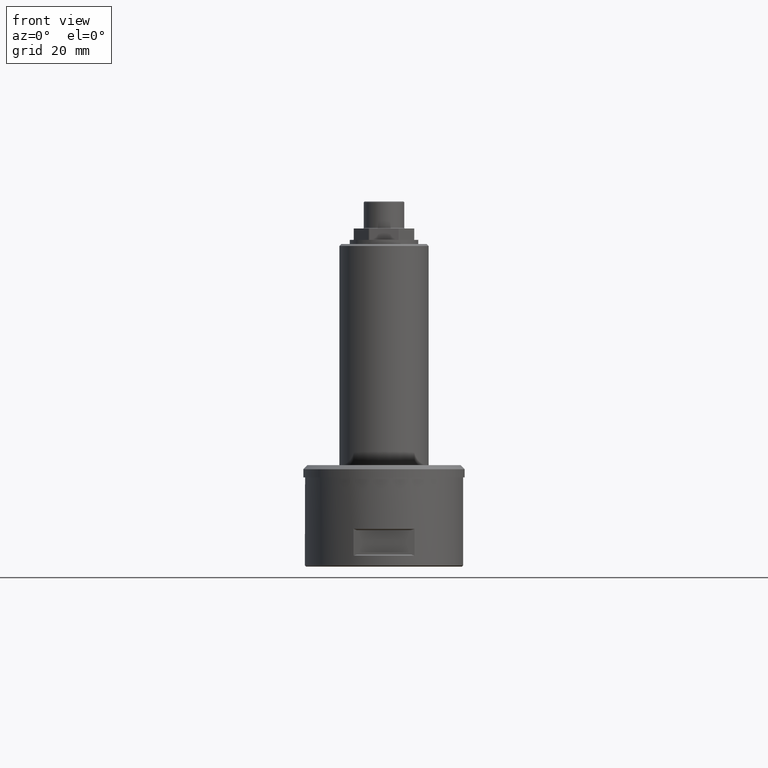
[diagram: clean part render]
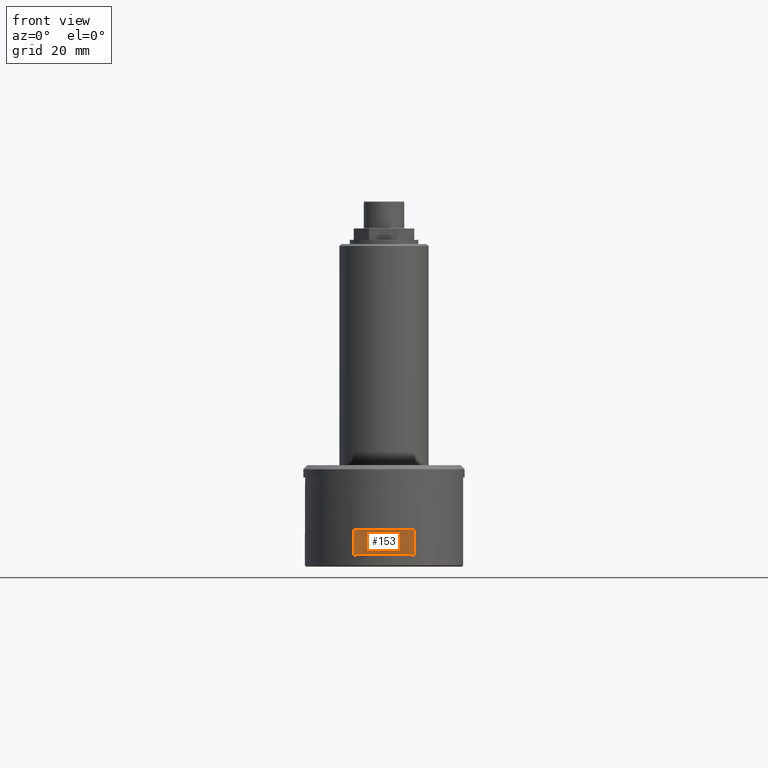
[diagram: same view with one face highlighted and labeled with its STEP entity id]
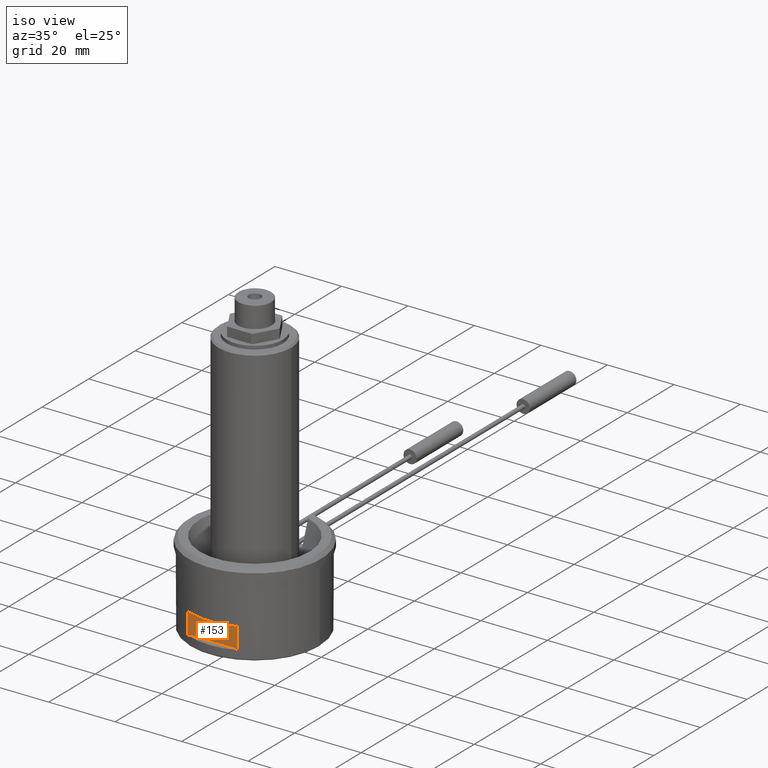
[diagram: same view with one face highlighted and labeled with its STEP entity id]
A machine part, front view. The second image highlights one B-rep face of the part: STEP entity #153.
A second angle (iso view) of the same face is appended — the face is thin or edge-on in the first view.
In plain terms, the highlighted planar face has unit normal (0, 1, 0).
Its self-contained STEP definition (entity closure, byte-faithful):
#62=B_SPLINE_CURVE_WITH_KNOTS('',3,(#1698,#1699,#1700,#1701),
 .UNSPECIFIED.,.F.,.F.,(4,4),(0.,1.),.UNSPECIFIED.);
#63=B_SPLINE_CURVE_WITH_KNOTS('',3,(#1705,#1706,#1707,#1708),
 .UNSPECIFIED.,.F.,.F.,(4,4),(0.,1.),.UNSPECIFIED.);
#64=B_SPLINE_CURVE_WITH_KNOTS('',3,(#1712,#1713,#1714,#1715),
 .UNSPECIFIED.,.F.,.F.,(4,4),(0.,1.),.UNSPECIFIED.);
#65=B_SPLINE_CURVE_WITH_KNOTS('',3,(#1716,#1717,#1718,#1719),
 .UNSPECIFIED.,.F.,.F.,(4,4),(0.,1.),.UNSPECIFIED.);
#102=FACE_OUTER_BOUND('',#408,.T.);
#153=ADVANCED_FACE('',(#102),#199,.F.);
#199=PLANE('',#1019);
#244=LINE('',#1690,#288);
#245=LINE('',#1695,#289);
#246=LINE('',#1703,#290);
#247=LINE('',#1710,#291);
#288=VECTOR('',#1228,1.);
#289=VECTOR('',#1233,1.);
#290=VECTOR('',#1234,1.);
#291=VECTOR('',#1235,1.);
#408=EDGE_LOOP('',(#560,#561,#562,#563,#564,#565,#566,#567));
#560=ORIENTED_EDGE('',*,*,#858,.F.);
#561=ORIENTED_EDGE('',*,*,#859,.T.);
#562=ORIENTED_EDGE('',*,*,#860,.T.);
#563=ORIENTED_EDGE('',*,*,#861,.T.);
#564=ORIENTED_EDGE('',*,*,#862,.F.);
#565=ORIENTED_EDGE('',*,*,#863,.T.);
#566=ORIENTED_EDGE('',*,*,#856,.T.);
#567=ORIENTED_EDGE('',*,*,#864,.T.);
#753=VERTEX_POINT('',#1691);
#754=VERTEX_POINT('',#1692);
#755=VERTEX_POINT('',#1696);
#756=VERTEX_POINT('',#1697);
#757=VERTEX_POINT('',#1702);
#758=VERTEX_POINT('',#1704);
#759=VERTEX_POINT('',#1709);
#760=VERTEX_POINT('',#1711);
#856=EDGE_CURVE('',#753,#754,#244,.T.);
#858=EDGE_CURVE('',#755,#756,#245,.T.);
#859=EDGE_CURVE('',#755,#757,#62,.T.);
#860=EDGE_CURVE('',#757,#758,#246,.T.);
#861=EDGE_CURVE('',#758,#759,#63,.T.);
#862=EDGE_CURVE('',#760,#759,#247,.T.);
#863=EDGE_CURVE('',#760,#753,#64,.T.);
#864=EDGE_CURVE('',#754,#756,#65,.T.);
#1019=AXIS2_PLACEMENT_3D('',#1720,#1236,#1237);
#1228=DIRECTION('',(-1.,0.,0.));
#1233=DIRECTION('',(0.,0.,1.));
#1234=DIRECTION('',(1.,0.,0.));
#1235=DIRECTION('',(0.,0.,-1.));
#1236=DIRECTION('',(0.,1.,0.));
#1237=DIRECTION('',(0.,0.,1.));
#1690=CARTESIAN_POINT('',(-8.07749999998543,-18.,8.99999999998455));
#1691=CARTESIAN_POINT('',(6.68131723539604,-18.,8.99999999998455));
#1692=CARTESIAN_POINT('',(-6.68131723539604,-18.,8.99999999998455));
#1695=CARTESIAN_POINT('',(-7.50000000000002,-18.,0.));
#1696=CARTESIAN_POINT('',(-7.50000000000002,-18.,2.69999999999999));
#1697=CARTESIAN_POINT('',(-7.50000000000002,-18.,9.29999999998456));
#1698=CARTESIAN_POINT('',(-7.50000000000002,-18.,2.69999999999999));
#1699=CARTESIAN_POINT('',(-7.2287329713317,-18.,2.80433347256473));
#1700=CARTESIAN_POINT('',(-6.95581167871184,-18.,2.90447997629446));
#1701=CARTESIAN_POINT('',(-6.68131723539604,-18.,2.99999999999999));
#1702=CARTESIAN_POINT('',(-6.68131723539604,-18.,2.99999999999999));
#1703=CARTESIAN_POINT('',(8.07749999998546,-18.,2.99999999999999));
#1704=CARTESIAN_POINT('',(6.68131723539604,-18.,2.99999999999999));
#1705=CARTESIAN_POINT('',(6.68131723539604,-18.,2.99999999999999));
#1706=CARTESIAN_POINT('',(6.95581167871184,-18.,2.90447997629446));
#1707=CARTESIAN_POINT('',(7.2287329713317,-18.,2.80433347256473));
#1708=CARTESIAN_POINT('',(7.50000000000002,-18.,2.69999999999999));
#1709=CARTESIAN_POINT('',(7.50000000000002,-18.,2.69999999999999));
#1710=CARTESIAN_POINT('',(7.50000000000002,-18.,0.));
#1711=CARTESIAN_POINT('',(7.50000000000002,-18.,9.29999999998456));
#1712=CARTESIAN_POINT('',(7.50000000000002,-18.,9.29999999998456));
#1713=CARTESIAN_POINT('',(7.2287329713317,-18.,9.19566652741982));
#1714=CARTESIAN_POINT('',(6.95581167871184,-18.,9.09552002369009));
#1715=CARTESIAN_POINT('',(6.68131723539604,-18.,8.99999999998455));
#1716=CARTESIAN_POINT('',(-6.68131723539604,-18.,8.99999999998455));
#1717=CARTESIAN_POINT('',(-6.95581167871184,-18.,9.09552002369009));
#1718=CARTESIAN_POINT('',(-7.2287329713317,-18.,9.19566652741982));
#1719=CARTESIAN_POINT('',(-7.50000000000002,-18.,9.29999999998456));
#1720=CARTESIAN_POINT('',(0.,-18.,0.));